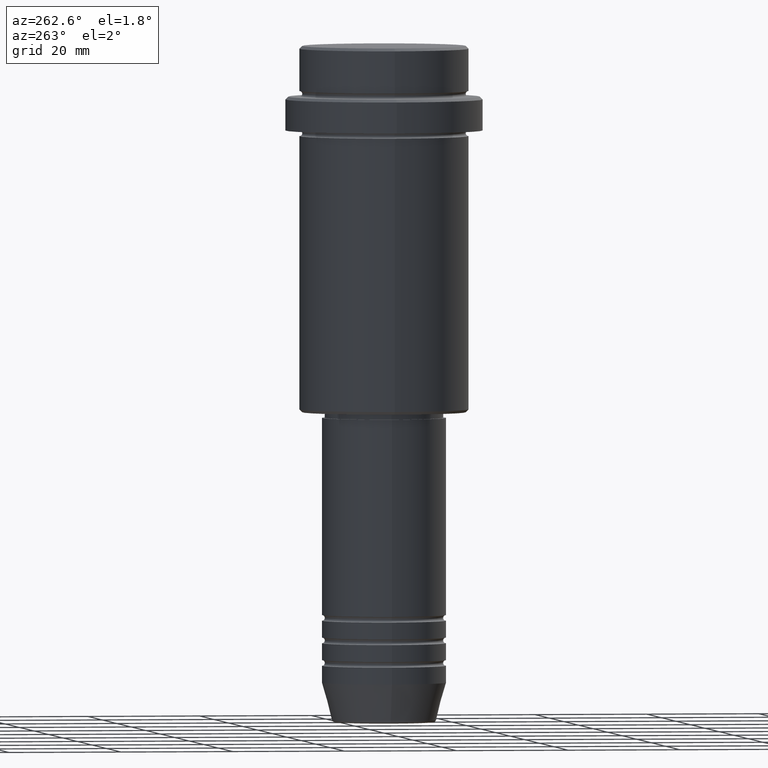
[diagram: clean part render]
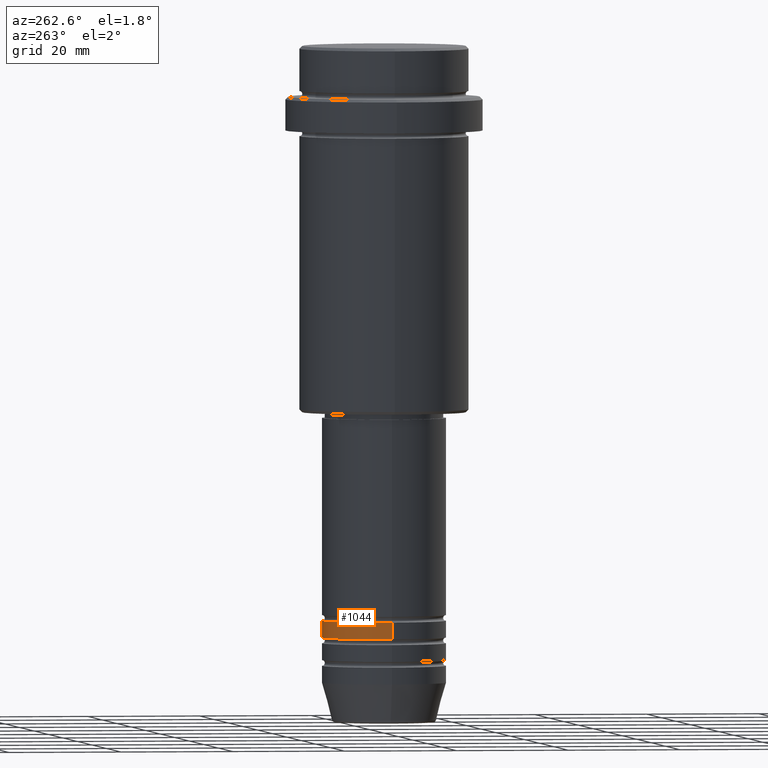
[diagram: same view with one face highlighted and labeled with its STEP entity id]
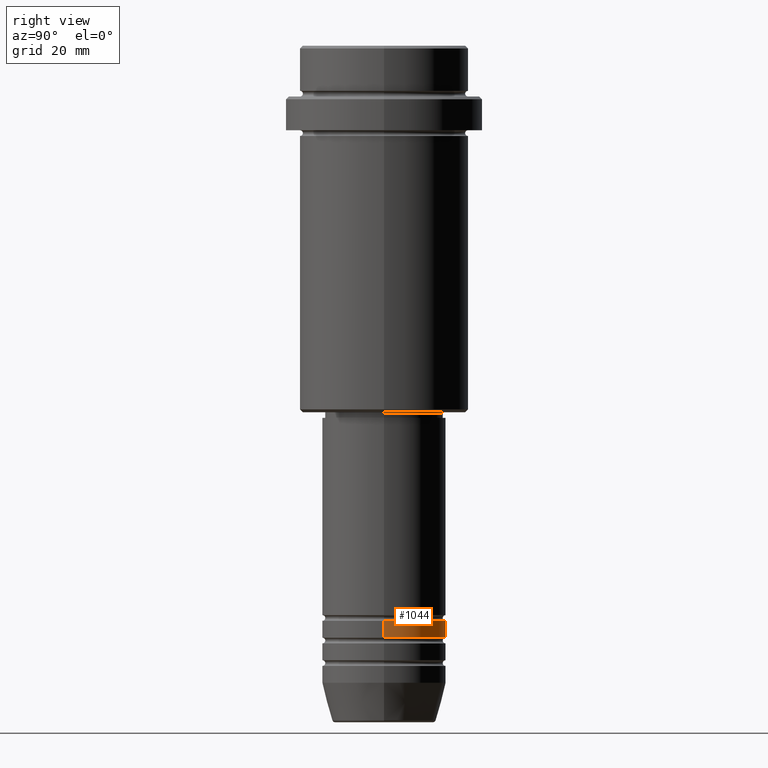
[diagram: same view with one face highlighted and labeled with its STEP entity id]
A machine part, auxiliary view. The second image highlights one B-rep face of the part: STEP entity #1044.
A second angle (right view) of the same face is appended — the face is thin or edge-on in the first view.
In plain terms, the highlighted cylindrical surface (partial cylindrical patch) has radius 11 mm, axis along (-0, -0, 1).
Its self-contained STEP definition (entity closure, byte-faithful):
#5 = DIRECTION ( 'NONE',  ( 1.000000000000000000, 0.000000000000000000, 0.000000000000000000 ) ) ;
#113 = DIRECTION ( 'NONE',  ( 1.000000000000000000, 0.000000000000000000, 0.000000000000000000 ) ) ;
#123 = CARTESIAN_POINT ( 'NONE',  ( 0.000000000000000000, 0.000000000000000000, -101.9999999999999005 ) ) ;
#129 = CARTESIAN_POINT ( 'NONE',  ( 0.000000000000000000, 0.000000000000000000, 0.000000000000000000 ) ) ;
#193 = AXIS2_PLACEMENT_3D ( 'NONE', #1284, #1289, #113 ) ;
#325 = DIRECTION ( 'NONE',  ( -0.000000000000000000, -0.000000000000000000, 1.000000000000000000 ) ) ;
#326 = CYLINDRICAL_SURFACE ( 'NONE', #498, 11.00000000000000000 ) ;
#347 = DIRECTION ( 'NONE',  ( 1.000000000000000000, 0.000000000000000000, 0.000000000000000000 ) ) ;
#484 = CARTESIAN_POINT ( 'NONE',  ( -11.00000000000000000, 1.347111479062088405E-15, -101.9999999999999005 ) ) ;
#485 = EDGE_CURVE ( 'NONE', #925, #632, #935, .T. ) ;
#498 = AXIS2_PLACEMENT_3D ( 'NONE', #129, #899, #347 ) ;
#501 = LINE ( 'NONE', #712, #1361 ) ;
#556 = DIRECTION ( 'NONE',  ( -0.000000000000000000, -0.000000000000000000, 1.000000000000000000 ) ) ;
#566 = AXIS2_PLACEMENT_3D ( 'NONE', #123, #556, #5 ) ;
#576 = CARTESIAN_POINT ( 'NONE',  ( -11.00000000000000000, 1.347111479062088405E-15, -104.9999999999999005 ) ) ;
#589 = VECTOR ( 'NONE', #325, 1000.000000000000000 ) ;
#599 = VERTEX_POINT ( 'NONE', #1326 ) ;
#632 = VERTEX_POINT ( 'NONE', #576 ) ;
#658 = CARTESIAN_POINT ( 'NONE',  ( -11.00000000000000000, 1.347111479062088405E-15, 0.000000000000000000 ) ) ;
#712 = CARTESIAN_POINT ( 'NONE',  ( 11.00000000000000000, 0.000000000000000000, 0.000000000000000000 ) ) ;
#748 = ORIENTED_EDGE ( 'NONE', *, *, #1409, .F. ) ;
#778 = EDGE_CURVE ( 'NONE', #925, #599, #501, .T. ) ;
#812 = ORIENTED_EDGE ( 'NONE', *, *, #778, .F. ) ;
#822 = VERTEX_POINT ( 'NONE', #484 ) ;
#846 = EDGE_LOOP ( 'NONE', ( #1087, #973, #748, #812 ) ) ;
#872 = FACE_OUTER_BOUND ( 'NONE', #846, .T. ) ;
#899 = DIRECTION ( 'NONE',  ( -0.000000000000000000, -0.000000000000000000, 1.000000000000000000 ) ) ;
#925 = VERTEX_POINT ( 'NONE', #1309 ) ;
#935 = CIRCLE ( 'NONE', #193, 11.00000000000000000 ) ;
#973 = ORIENTED_EDGE ( 'NONE', *, *, #1398, .T. ) ;
#1044 = ADVANCED_FACE ( 'NONE', ( #872 ), #326, .T. ) ;
#1087 = ORIENTED_EDGE ( 'NONE', *, *, #485, .T. ) ;
#1102 = LINE ( 'NONE', #658, #589 ) ;
#1165 = DIRECTION ( 'NONE',  ( -0.000000000000000000, -0.000000000000000000, 1.000000000000000000 ) ) ;
#1183 = CIRCLE ( 'NONE', #566, 11.00000000000000000 ) ;
#1284 = CARTESIAN_POINT ( 'NONE',  ( 0.000000000000000000, 0.000000000000000000, -104.9999999999999005 ) ) ;
#1289 = DIRECTION ( 'NONE',  ( -0.000000000000000000, -0.000000000000000000, 1.000000000000000000 ) ) ;
#1309 = CARTESIAN_POINT ( 'NONE',  ( 11.00000000000000000, 0.000000000000000000, -104.9999999999999005 ) ) ;
#1326 = CARTESIAN_POINT ( 'NONE',  ( 11.00000000000000000, 0.000000000000000000, -101.9999999999999005 ) ) ;
#1361 = VECTOR ( 'NONE', #1165, 1000.000000000000000 ) ;
#1398 = EDGE_CURVE ( 'NONE', #632, #822, #1102, .T. ) ;
#1409 = EDGE_CURVE ( 'NONE', #599, #822, #1183, .T. ) ;